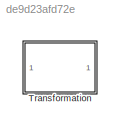
MODEL slx_de9d23afd72e
KIND model
CONFIG AbsTol = auto
CONFIG EnableMultiTasking = off
CONFIG FixedStep = auto
CONFIG MaxStep = auto
CONFIG MinStep = auto
CONFIG RelTol = 1e-3
CONFIG SampleTimeConstraint = Unconstrained
CONFIG SolverName = VariableStepAuto
CONFIG StartTime = 0.0
CONFIG StopTime = 10.0
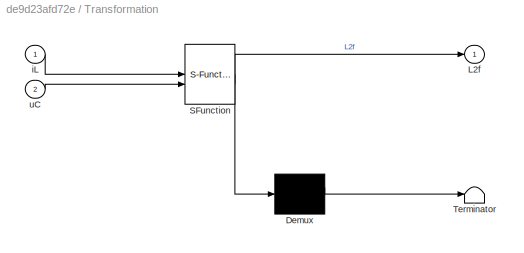
BLOCK [SubSystem] Transformation
  ErrorFcn = Stateflow.Translate.translate
  LibrarySourceBlock = simulink/User-Defined\nFunctions/MATLAB Function
  PermitHierarchicalResolution = ExplicitOnly
  SFBlockType = MATLAB Function
  TreatAsAtomicUnit = on
BLOCK [Demux] Transformation/ Demux 
  Outputs = 1
BLOCK [S-Function] Transformation/ SFunction 
  EnableBusSupport = off
  FunctionName = sf_sfun
  PortCounts = [2 2]
  SFcnIsStateOwnerBlock = off
  SFunctionDeploymentMode = off
  Tag = Stateflow S-Function 2
BLOCK [Terminator] Transformation/ Terminator 
BLOCK [Outport] Transformation/L2f
BLOCK [Inport] Transformation/iL
BLOCK [Inport] Transformation/uC
  Port = 2
CHART Transformation states=1 transitions=1
  STATE_LABEL 'eML_blk_kernel()'
  STATE_LABEL 'SCRIPT:\nfunction L2f = L2f(iL, uC)\nE = 12; %V\nR = 52; %Omh\nL = 0.01591; %H\nC = 0.000470; %F \n\nL2f = -E/L*uC + (1/C*iL + uC/(C*R))*(-E/R + 2*uC/R);\n'
CHART  states=0 transitions=0
